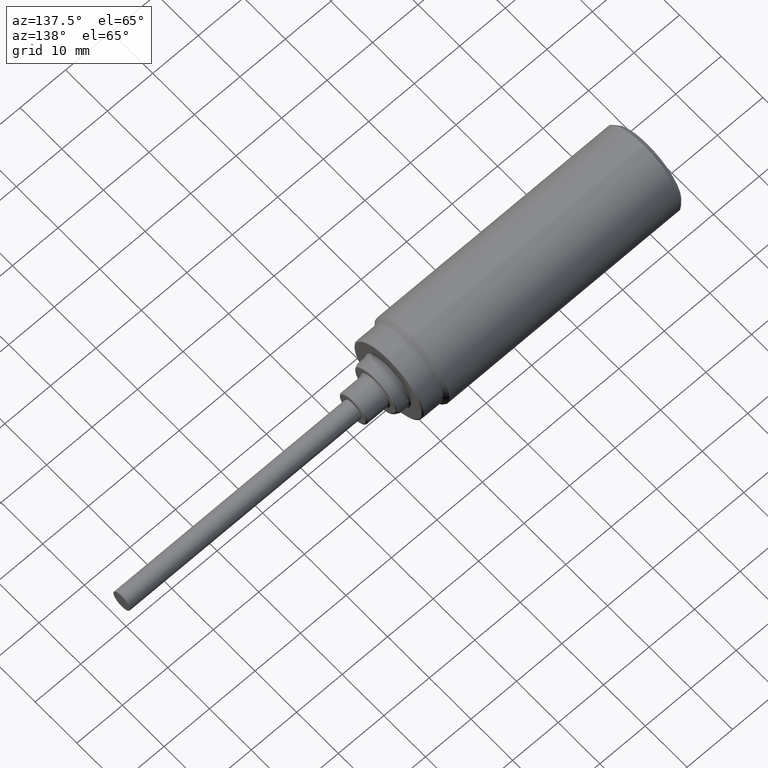
[diagram: clean part render]
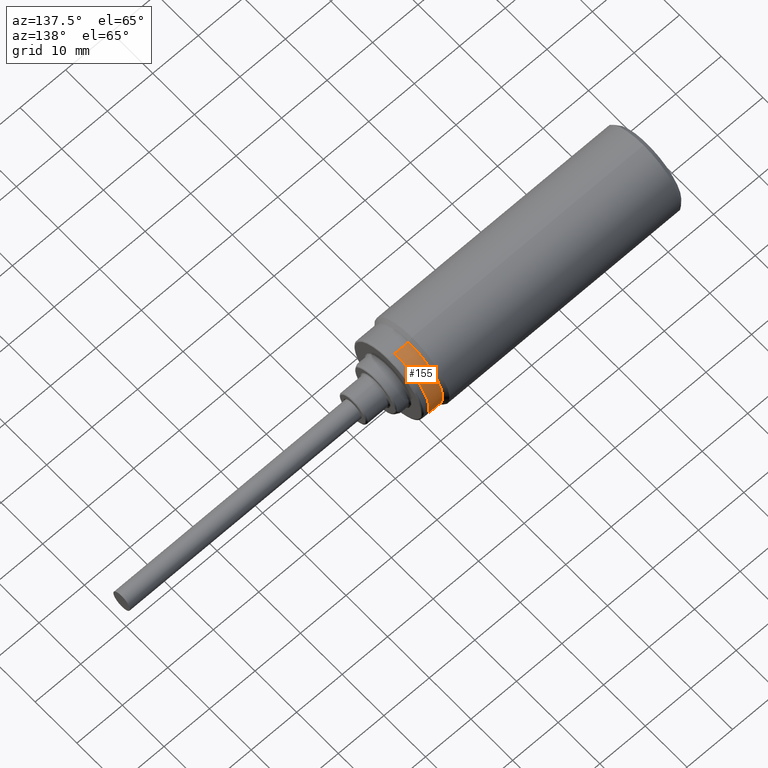
[diagram: same view with one face highlighted and labeled with its STEP entity id]
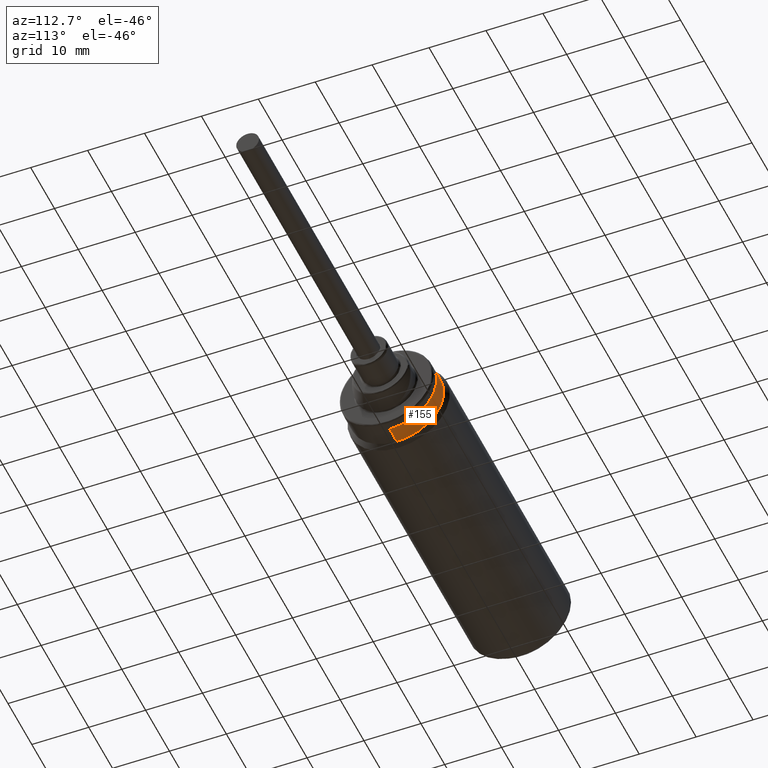
[diagram: same view with one face highlighted and labeled with its STEP entity id]
A machine part, auxiliary view. The second image highlights one B-rep face of the part: STEP entity #155.
A second angle (auxiliary view) of the same face is appended — the face is thin or edge-on in the first view.
In plain terms, the highlighted cylindrical surface (partial cylindrical patch) has radius 8.25 mm, axis along (-1, -0, -0).
Its self-contained STEP definition (entity closure, byte-faithful):
#65 = CARTESIAN_POINT ( 'NONE',  ( 1.885826771653543100, 1.905463975580823500E-017, 0.3248031496062992500 ) ) ;
#155 = ADVANCED_FACE ( 'NONE', ( #777 ), #419, .T. ) ;
#373 = DIRECTION ( 'NONE',  ( -1.000000000000000000, -0.0000000000000000000, -0.0000000000000000000 ) ) ;
#388 = DIRECTION ( 'NONE',  ( 0.0000000000000000000, 0.0000000000000000000, 1.000000000000000000 ) ) ;
#419 = CYLINDRICAL_SURFACE ( 'NONE', #911, 0.3248031496062992500 ) ;
#471 = AXIS2_PLACEMENT_3D ( 'NONE', #3309, #883, #3001 ) ;
#556 = LINE ( 'NONE', #3278, #3070 ) ;
#574 = CIRCLE ( 'NONE', #1271, 0.3248031496062992500 ) ;
#777 = FACE_OUTER_BOUND ( 'NONE', #1249, .T. ) ;
#883 = DIRECTION ( 'NONE',  ( 1.000000000000000000, 0.0000000000000000000, 0.0000000000000000000 ) ) ;
#911 = AXIS2_PLACEMENT_3D ( 'NONE', #2556, #373, #388 ) ;
#1085 = VECTOR ( 'NONE', #2367, 39.37007874015748100 ) ;
#1161 = CARTESIAN_POINT ( 'NONE',  ( 2.003937007874015700, 1.905463975580823500E-017, 0.3248031496062992500 ) ) ;
#1204 = ORIENTED_EDGE ( 'NONE', *, *, #1214, .T. ) ;
#1214 = EDGE_CURVE ( 'NONE', #2950, #1883, #574, .T. ) ;
#1249 = EDGE_LOOP ( 'NONE', ( #1468, #2452, #1204, #1561 ) ) ;
#1271 = AXIS2_PLACEMENT_3D ( 'NONE', #3405, #3169, #3127 ) ;
#1366 = VERTEX_POINT ( 'NONE', #2973 ) ;
#1394 = DIRECTION ( 'NONE',  ( -1.000000000000000000, -0.0000000000000000000, -0.0000000000000000000 ) ) ;
#1468 = ORIENTED_EDGE ( 'NONE', *, *, #1654, .F. ) ;
#1561 = ORIENTED_EDGE ( 'NONE', *, *, #3145, .F. ) ;
#1654 = EDGE_CURVE ( 'NONE', #1366, #1858, #2970, .T. ) ;
#1858 = VERTEX_POINT ( 'NONE', #1161 ) ;
#1883 = VERTEX_POINT ( 'NONE', #65 ) ;
#2367 = DIRECTION ( 'NONE',  ( -1.000000000000000000, -0.0000000000000000000, -0.0000000000000000000 ) ) ;
#2452 = ORIENTED_EDGE ( 'NONE', *, *, #2622, .T. ) ;
#2556 = CARTESIAN_POINT ( 'NONE',  ( -0.1811023622047247000, 1.905463975580823500E-017, 3.332107562584632300E-018 ) ) ;
#2622 = EDGE_CURVE ( 'NONE', #1366, #2950, #556, .T. ) ;
#2871 = CARTESIAN_POINT ( 'NONE',  ( -0.1811023622047247000, 1.905463975580823500E-017, 0.3248031496062992500 ) ) ;
#2950 = VERTEX_POINT ( 'NONE', #3438 ) ;
#2970 = CIRCLE ( 'NONE', #471, 0.3248031496062992500 ) ;
#2973 = CARTESIAN_POINT ( 'NONE',  ( 2.003937007874015700, 5.883155350764155800E-017, -0.3248031496062992500 ) ) ;
#3001 = DIRECTION ( 'NONE',  ( 0.0000000000000000000, 0.0000000000000000000, 1.000000000000000000 ) ) ;
#3027 = LINE ( 'NONE', #2871, #1085 ) ;
#3070 = VECTOR ( 'NONE', #1394, 39.37007874015748100 ) ;
#3127 = DIRECTION ( 'NONE',  ( 0.0000000000000000000, 0.0000000000000000000, 1.000000000000000000 ) ) ;
#3145 = EDGE_CURVE ( 'NONE', #1858, #1883, #3027, .T. ) ;
#3169 = DIRECTION ( 'NONE',  ( 1.000000000000000000, 0.0000000000000000000, 0.0000000000000000000 ) ) ;
#3278 = CARTESIAN_POINT ( 'NONE',  ( -0.1811023622047247000, 5.883155350764155800E-017, -0.3248031496062992500 ) ) ;
#3309 = CARTESIAN_POINT ( 'NONE',  ( 2.003937007874015700, 1.905463975580823500E-017, 3.332107562584632300E-018 ) ) ;
#3405 = CARTESIAN_POINT ( 'NONE',  ( 1.885826771653543100, 1.905463975580823500E-017, 3.332107562584632300E-018 ) ) ;
#3438 = CARTESIAN_POINT ( 'NONE',  ( 1.885826771653543100, 6.063959504181580000E-017, -0.3248031496062992500 ) ) ;